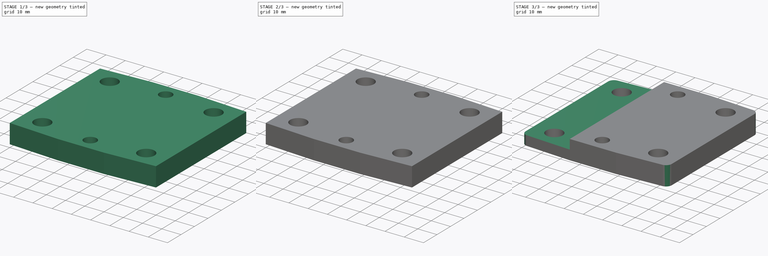
[diagram: build sequence overview — one tinted view per stage of 3, left to right]
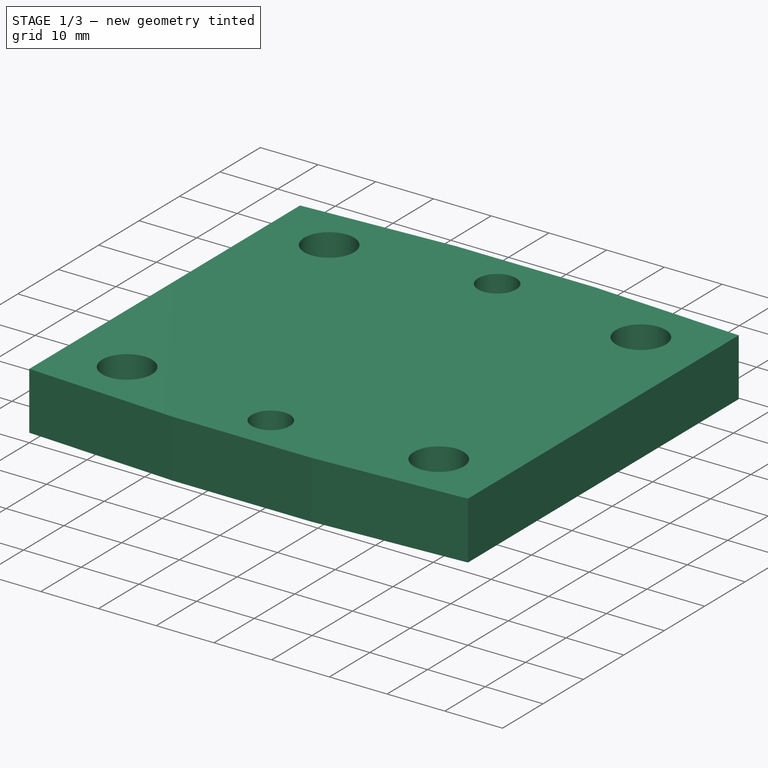
[diagram: stage 1 of 3 — iso view after this stage's code; geometry added in this stage tinted green]
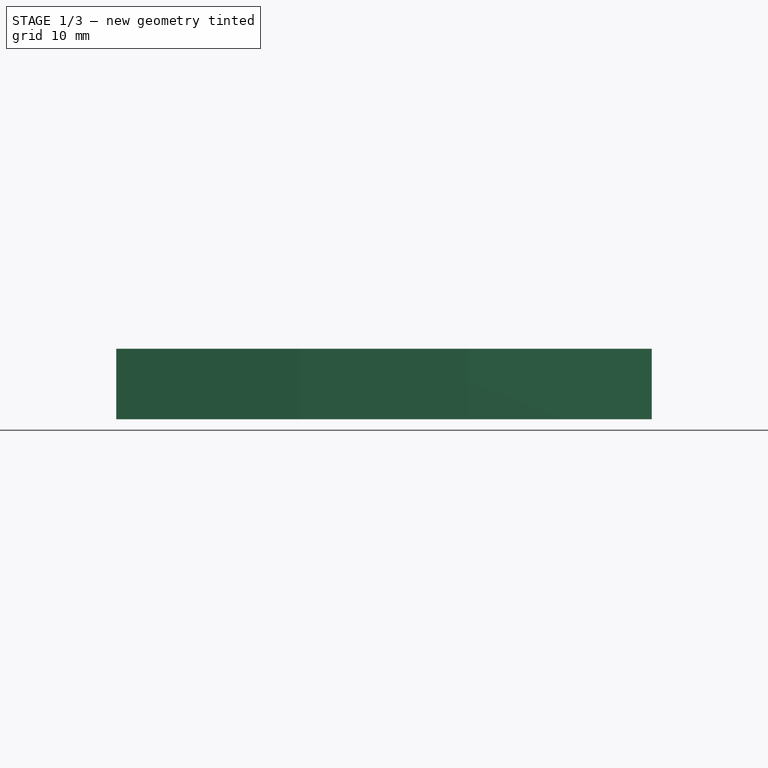
[diagram: stage 1 of 3 — front view after this stage's code; geometry added in this stage tinted green]
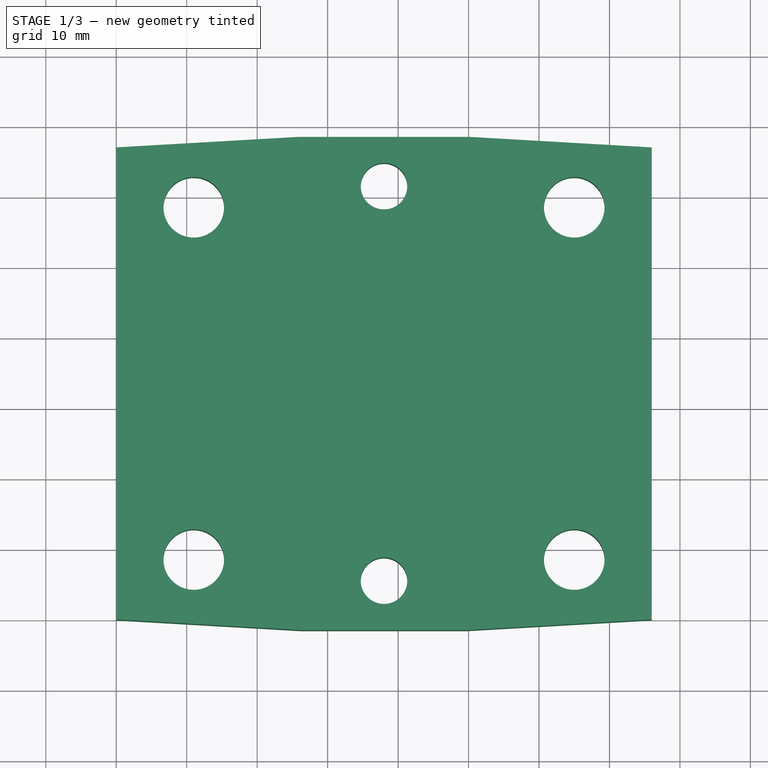
[diagram: stage 1 of 3 — top view after this stage's code; geometry added in this stage tinted green]
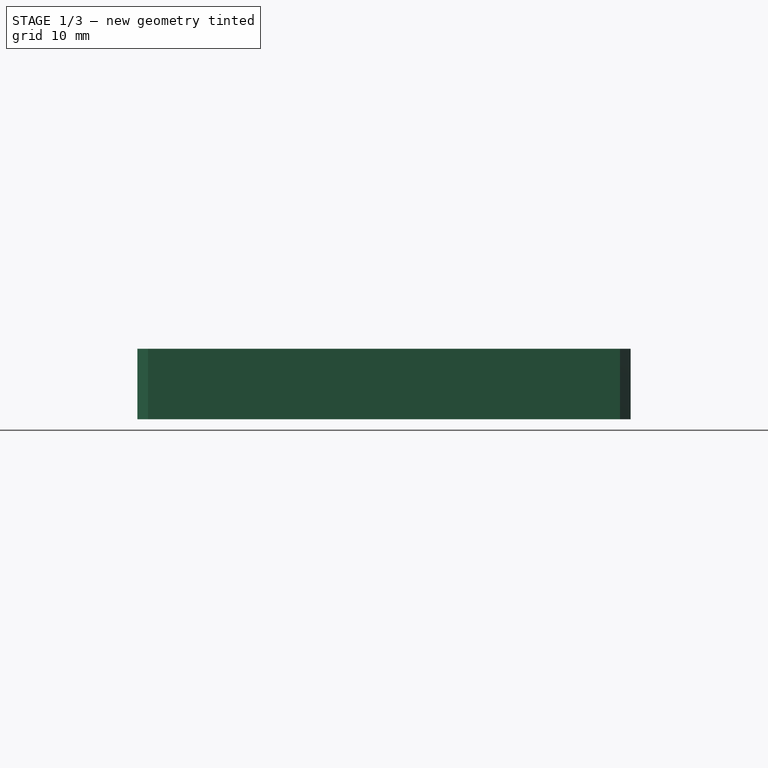
[diagram: stage 1 of 3 — right view after this stage's code; geometry added in this stage tinted green]
FCSTD DOCUMENT  (FreeCAD 1.0R39109 (Git))
Label: sway_SC25UU_to_SH25_with_plate
License: All rights reserved
LicenseURL: https://en.wikipedia.org/wiki/All_rights_reserved
objects: Sketcher::SketchObject×4, PartDesign::Pocket×3, PartDesign::Pad×1, PartDesign::Fillet×1, PartDesign::Body×1
note: 24 computed .brp shape members not serialized (recipe doc carries the construction recipe); baked Part::Feature solids carry a one-line shape summary decoded from their .brp

FEATURE [Sketcher::SketchObject] Sketch
  ArcFitTolerance = 1e-06
  AttachmentSupport = -> [XY_Plane]
  FullyConstrained = true
  MakeInternals = false
  MapMode = 5
  sketch-geometry (19):
    g0: LineSegment StartX=76 StartY=0 StartZ=0 EndX=76 EndY=67 EndZ=0
    g1: LineSegment StartX=0 StartY=67 StartZ=0 EndX=0 EndY=0 EndZ=0
    g2: LineSegment [constr] StartX=11 StartY=58.5 StartZ=0 EndX=11 EndY=8.5 EndZ=0
    g3: LineSegment [constr] StartX=11 StartY=8.5 StartZ=0 EndX=65 EndY=8.5 EndZ=0
    g4: LineSegment [constr] StartX=65 StartY=8.5 StartZ=0 EndX=65 EndY=58.5 EndZ=0
    g5: LineSegment [constr] StartX=65 StartY=58.5 StartZ=0 EndX=11 EndY=58.5 EndZ=0
    g6: Circle CenterX=11 CenterY=58.5 CenterZ=0 NormalX=0 NormalY=0 NormalZ=1 AngleXU=0 Radius=4.3
    g7: Circle CenterX=65 CenterY=58.5 CenterZ=0 NormalX=0 NormalY=0 NormalZ=1 AngleXU=0 Radius=4.3
    g8: Circle CenterX=65 CenterY=8.5 CenterZ=0 NormalX=0 NormalY=0 NormalZ=1 AngleXU=0 Radius=4.3
    g9: Circle CenterX=11 CenterY=8.5 CenterZ=0 NormalX=0 NormalY=0 NormalZ=1 AngleXU=0 Radius=4.3
    g10: LineSegment [constr] StartX=0 StartY=0 StartZ=0 EndX=11 EndY=8.5 EndZ=0
    g11: LineSegment [constr] StartX=65 StartY=58.5 StartZ=0 EndX=76 EndY=67 EndZ=0
    g12: LineSegment [constr] StartX=11 StartY=58.5 StartZ=0 EndX=0 EndY=67 EndZ=0
    g13: LineSegment StartX=0 StartY=67 StartZ=0 EndX=26 EndY=68.5 EndZ=0
    g14: LineSegment StartX=26 StartY=68.5 StartZ=0 EndX=50 EndY=68.5 EndZ=0
    g15: LineSegment StartX=50 StartY=68.5 StartZ=0 EndX=76 EndY=67 EndZ=0
    g16: LineSegment StartX=0 StartY=0 StartZ=0 EndX=26 EndY=-1.5 EndZ=0
    g17: LineSegment StartX=26 StartY=-1.5 StartZ=0 EndX=50 EndY=-1.5 EndZ=0
    g18: LineSegment StartX=50 StartY=-1.5 StartZ=0 EndX=76 EndY=0 EndZ=0
  constraints (49):
    c: Vertical(g0)
    c: Vertical(g1)
    c: Distance(g0,g1) = 76
    c: Distance(g1,g1) = 67
    c: Coincident(g2,g3)
    c: Coincident(g3,g4)
    c: Coincident(g4,g5)
    c: Coincident(g5,g2)
    c: Vertical(g2)
    c: Vertical(g4)
    c: Horizontal(g3)
    c: Horizontal(g5)
    c: Distance(g2,g4) = 54
    c: Distance(g3,g5) = 50
    c: Coincident(g6,g2)
    c: Coincident(g7,g4)
    c: Coincident(g8,g3)
    c: Coincident(g9,g2)
    c: Equal(g7,g8)
    c: Equal(g7,g9)
    c: Equal(g7,g6)
    c: Diameter(g7) = 8.6
    c: Coincident(g10,g2)
    c: Coincident(g11,g4)
    c: Coincident(g11,g0)
    c: Coincident(g12,g2)
    c: Equal(g12,g10)
    c: Equal(g12,g11)
    c: Coincident(g13,g1)
    c: Coincident(g14,g13)
    c: Horizontal(g14)
    c: Coincident(g15,g14)
    c: Coincident(g15,g0)
    c: Coincident(g16,g1)
    c: Coincident(g17,g16)
    c: Horizontal(g17)
    c: Coincident(g18,g17)
    c: Coincident(g18,g0)
    c: DistanceX(g17,g17) = 24
    c: Equal(g17,g14)
    c: Equal(g13,g15)
    c: Equal(g15,g18)
    c: Equal(g18,g16)
    c: Coincident(g1,g10)
    c: Coincident(g1,g-1)
    c: Coincident(g12,g1)
    c: PointOnObject(g0,g-1)
    c: Equal(g0,g1)
    c: DistanceY(g16,g13) = 70
FEATURE [PartDesign::Pad] Pad
  Direction = (0,0,1)
  Length = 10
  Length2 = 10
  Profile = -> Sketch
  ReferenceAxis = -> Sketch [N_Axis]
  Refine = true
  Suppressed = false
  Type = 0
FEATURE [Sketcher::SketchObject] Sketch001
  ArcFitTolerance = 1e-06
  AttachmentSupport = -> [Pad]
  FullyConstrained = true
  MakeInternals = false
  MapMode = 5
  Placement = pos=(0,0,10) rot=(0,0,1;0rad)
  sketch-geometry (2):
    g0: Circle CenterX=38 CenterY=61.5 CenterZ=0 NormalX=0 NormalY=0 NormalZ=1 AngleXU=0 Radius=3.3
    g1: Circle CenterX=38 CenterY=5.5 CenterZ=0 NormalX=0 NormalY=0 NormalZ=1 AngleXU=0 Radius=3.3
  constraints (6):
    c: DistanceY(g1,g0) = 56
    c: Equal(g1,g0)
    c: Diameter(g1) = 6.6
    c: DistanceY(g1) = 5.5
    c: DistanceX(g1) = 38
    c: DistanceX(g0,g1) = 0
FEATURE [PartDesign::Pocket] Pocket
  BaseFeature = -> Pad
  Direction = (0,0,-1)
  Length = 5
  Length2 = 5
  Profile = -> Sketch001
  ReferenceAxis = -> Sketch001 [N_Axis]
  Refine = true
  Suppressed = false
  Type = 1
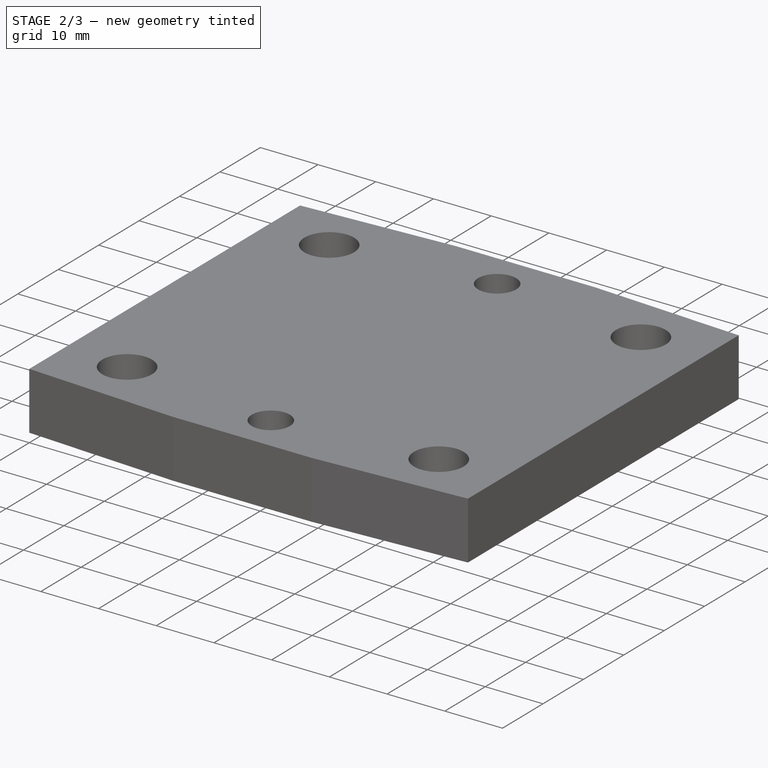
[diagram: stage 2 of 3 — iso view after this stage's code; geometry added in this stage tinted green]
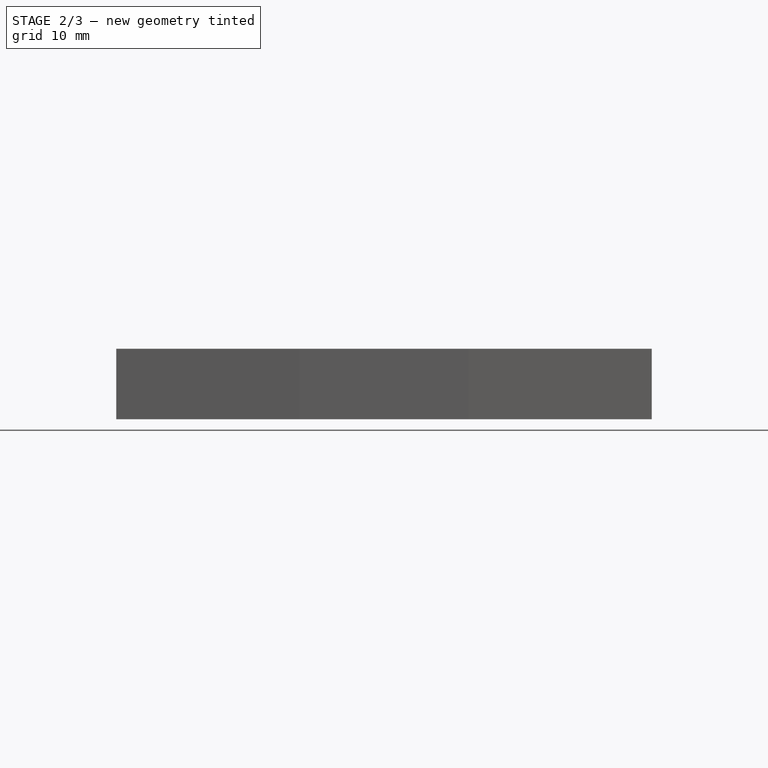
[diagram: stage 2 of 3 — front view after this stage's code; geometry added in this stage tinted green]
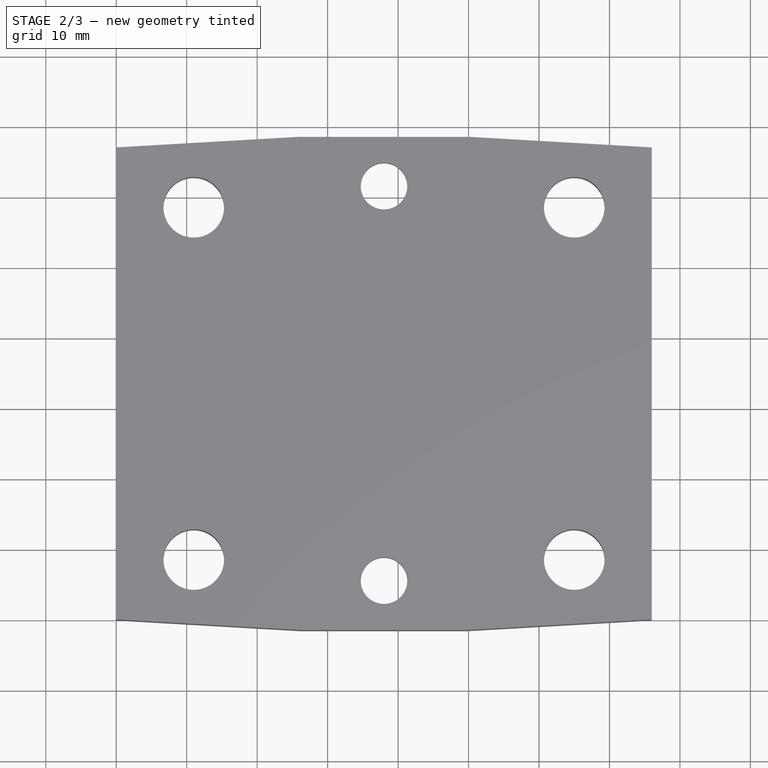
[diagram: stage 2 of 3 — top view after this stage's code; geometry added in this stage tinted green]
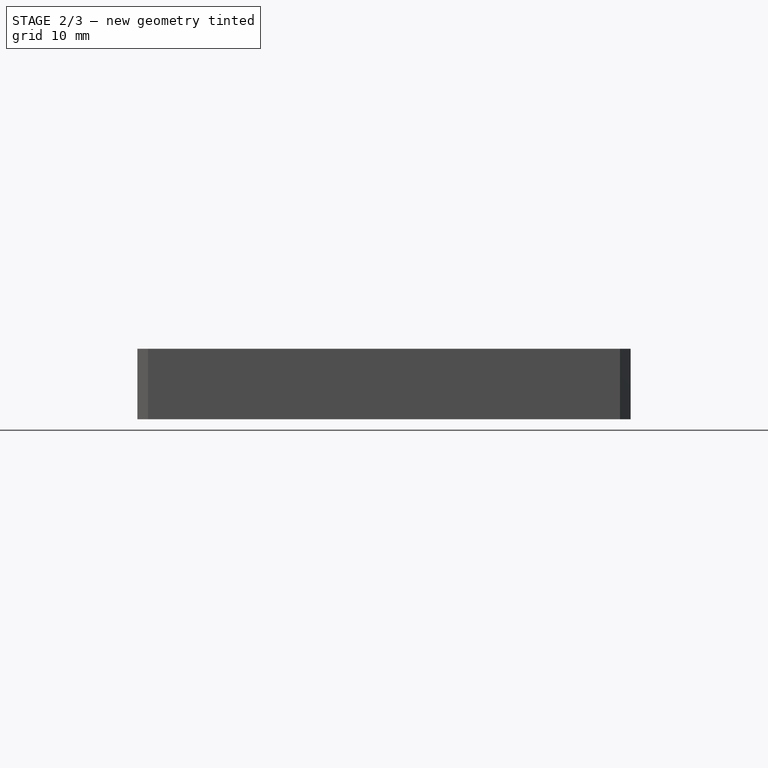
[diagram: stage 2 of 3 — right view after this stage's code; geometry added in this stage tinted green]
FEATURE [Sketcher::SketchObject] Sketch002
  ArcFitTolerance = 1e-06
  AttachmentSupport = -> [Pocket]
  FullyConstrained = true
  MakeInternals = false
  MapMode = 5
  Placement = pos=(0,0,0) rot=(1,0,0;3.14159rad)
  expr: Constraints[2] = Sketch001.Constraints[2]
  expr: Constraints[4] = Sketch001.Constraints[4]
  expr: Constraints[5] = Sketch001.Constraints[5]
  sketch-geometry (16):
    g0: Circle [constr] CenterX=38 CenterY=-61.5 CenterZ=0 NormalX=0 NormalY=0 NormalZ=1 AngleXU=0 Radius=3.3
    g1: Circle [constr] CenterX=38 CenterY=-5.5 CenterZ=0 NormalX=0 NormalY=0 NormalZ=1 AngleXU=0 Radius=3.3
    g2: LineSegment StartX=40.9734 StartY=-10.65 StartZ=0 EndX=43.9467 EndY=-5.5 EndZ=0
    g3: LineSegment StartX=43.9467 StartY=-5.5 StartZ=0 EndX=40.9734 EndY=-0.35 EndZ=0
    g4: LineSegment StartX=40.9734 StartY=-0.35 StartZ=0 EndX=35.0266 EndY=-0.35 EndZ=0
    g5: LineSegment StartX=35.0266 StartY=-0.35 StartZ=0 EndX=32.0533 EndY=-5.5 EndZ=0
    g6: LineSegment StartX=32.0533 StartY=-5.5 StartZ=0 EndX=35.0266 EndY=-10.65 EndZ=0
    g7: LineSegment StartX=35.0266 StartY=-10.65 StartZ=0 EndX=40.9734 EndY=-10.65 EndZ=0
    g8: Circle [constr] CenterX=38 CenterY=-5.5 CenterZ=0 NormalX=0 NormalY=0 NormalZ=1 AngleXU=0 Radius=5.94671
    g9: LineSegment StartX=43.9467 StartY=-61.5 StartZ=0 EndX=40.9734 EndY=-56.35 EndZ=0
    g10: LineSegment StartX=40.9734 StartY=-56.35 StartZ=0 EndX=35.0266 EndY=-56.35 EndZ=0
    g11: LineSegment StartX=35.0266 StartY=-56.35 StartZ=0 EndX=32.0533 EndY=-61.5 EndZ=0
    g12: LineSegment StartX=32.0533 StartY=-61.5 StartZ=0 EndX=35.0266 EndY=-66.65 EndZ=0
    g13: LineSegment StartX=35.0266 StartY=-66.65 StartZ=0 EndX=40.9734 EndY=-66.65 EndZ=0
    g14: LineSegment StartX=40.9734 StartY=-66.65 StartZ=0 EndX=43.9467 EndY=-61.5 EndZ=0
    g15: Circle [constr] CenterX=38 CenterY=-61.5 CenterZ=0 NormalX=0 NormalY=0 NormalZ=1 AngleXU=0 Radius=5.94671
  constraints (38):
    c: DistanceY(g1,g0) = -56
    c: Equal(g1,g0)
    c: Diameter(g1) = 6.6
    c: DistanceY(g1) = -5.5
    c: DistanceX(g1) = 38
    c: DistanceX(g0,g1) = 0
    c: Coincident(g2,g3)
    c: Coincident(g3,g4)
    c: Coincident(g4,g5)
    c: Coincident(g5,g6)
    c: Coincident(g6,g7)
    c: Coincident(g7,g2)
    c: Equal(g2, g3-g7) x5
    c: PointOnObject(g2,g8)
    c: PointOnObject(g3,g8)
    c: PointOnObject(g4,g8)
    c: PointOnObject(g5,g8)
    c: PointOnObject(g6,g8)
    c: PointOnObject(g7,g8)
    c: Coincident(g8,g1)
    c: Coincident(g9,g10)
    c: Coincident(g10,g11)
    c: Coincident(g11,g12)
    c: Coincident(g12,g13)
    c: Coincident(g13,g14)
    c: Coincident(g14,g9)
    c: Equal(g9, g10-g14) x5
    c: PointOnObject(g9,g15)
    c: PointOnObject(g10,g15)
    c: PointOnObject(g11,g15)
    c: PointOnObject(g12,g15)
    c: PointOnObject(g13,g15)
    c: PointOnObject(g14,g15)
    c: Coincident(g15,g0)
    c: Distance(g10,g9) = 10.3
    c: Horizontal(g10)
    c: Equal(g10,g4)
    c: Horizontal(g4)
FEATURE [PartDesign::Pocket] Pocket001
  BaseFeature = -> Pocket
  Direction = (0,0,1)
  Length = 5.2
  Length2 = 5
  Profile = -> Sketch002
  ReferenceAxis = -> Sketch002 [N_Axis]
  Refine = true
  Suppressed = false
  Type = 0
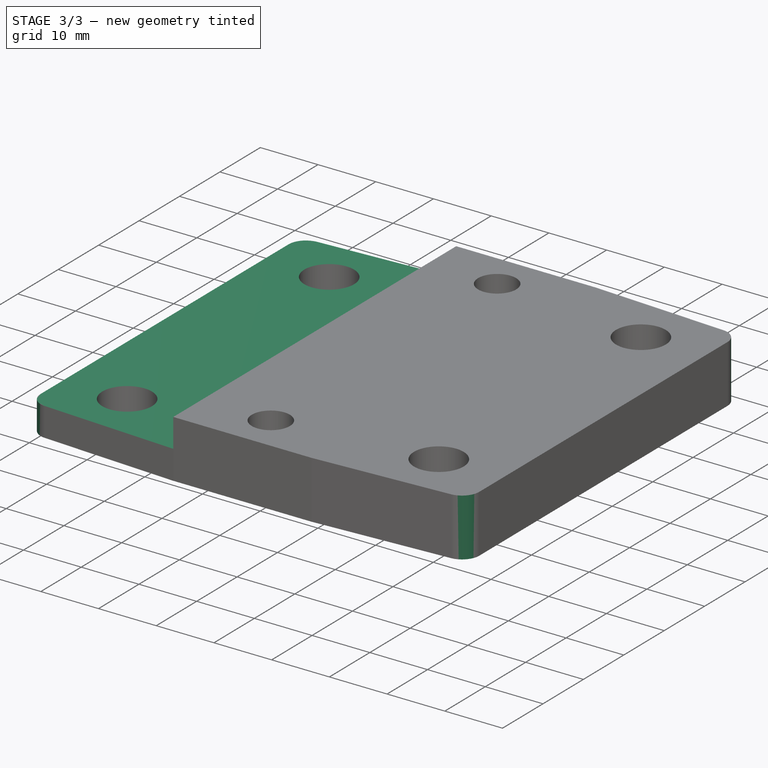
[diagram: stage 3 of 3 — iso view after this stage's code; geometry added in this stage tinted green]
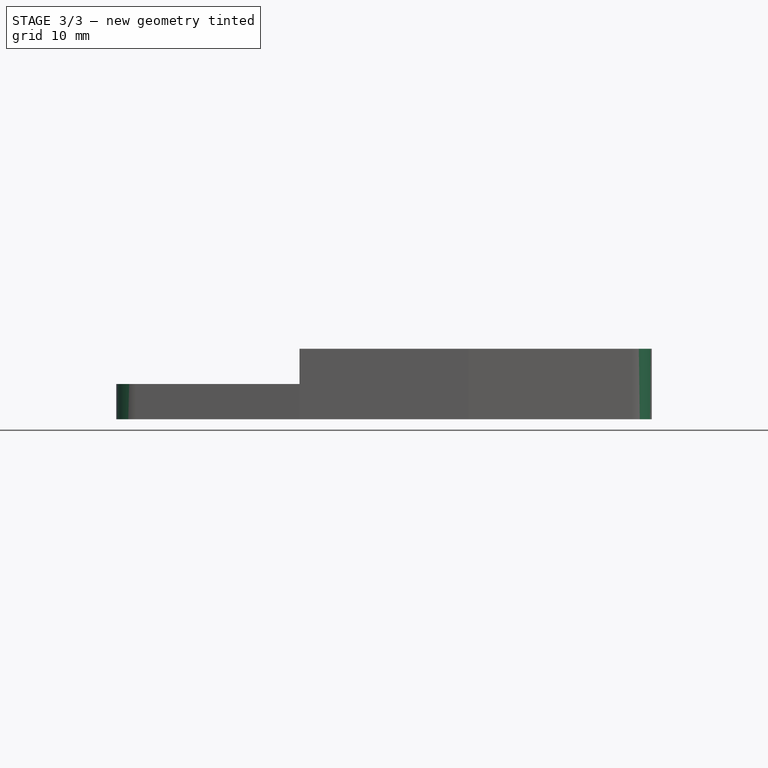
[diagram: stage 3 of 3 — front view after this stage's code; geometry added in this stage tinted green]
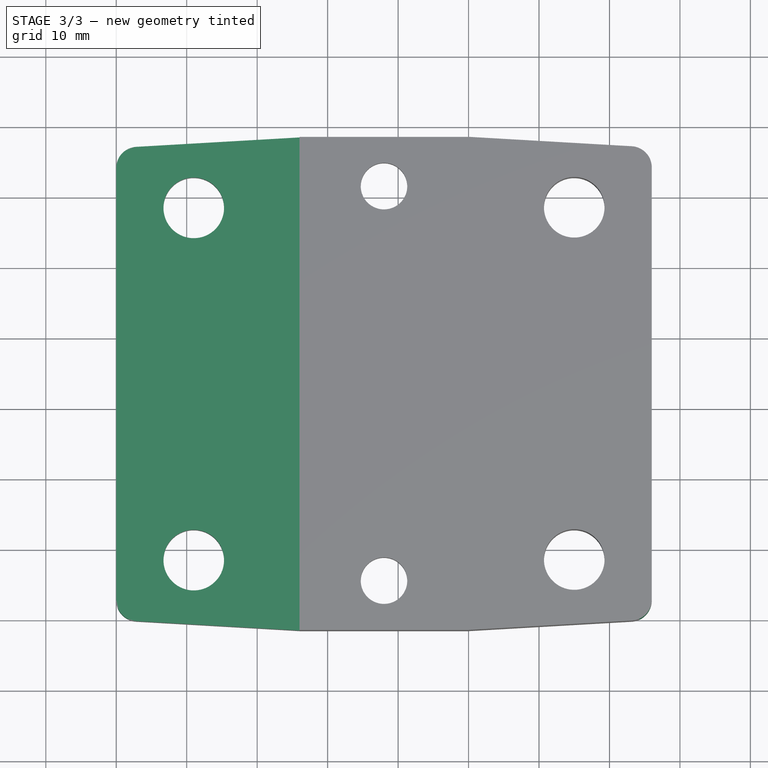
[diagram: stage 3 of 3 — top view after this stage's code; geometry added in this stage tinted green]
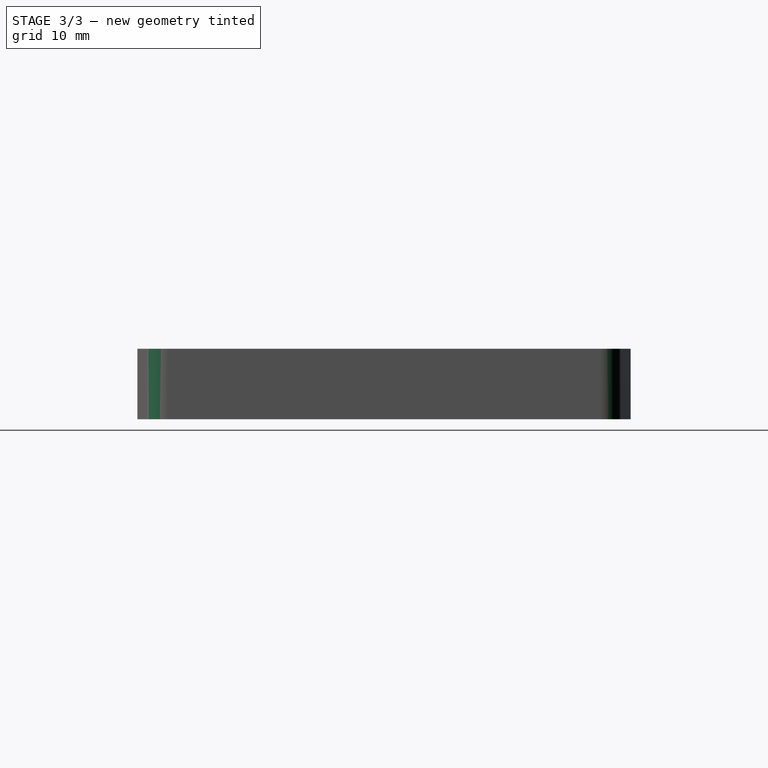
[diagram: stage 3 of 3 — right view after this stage's code; geometry added in this stage tinted green]
FEATURE [PartDesign::Fillet] Fillet
  Base = -> Pocket001 [Edge1,Edge2,Edge46,Edge45]
  BaseFeature = -> Pocket001
  Radius = 3
  Refine = true
  SupportTransform = false
  Suppressed = false
  UseAllEdges = false
FEATURE [Sketcher::SketchObject] Sketch003
  ArcFitTolerance = 1e-06
  AttachmentSupport = -> [Fillet]
  FullyConstrained = true
  MakeInternals = false
  MapMode = 5
  Placement = pos=(0,0,10) rot=(0,0,1;0rad)
  sketch-geometry (4):
    g0: LineSegment StartX=0 StartY=-1.5 StartZ=0 EndX=26 EndY=-1.5 EndZ=0
    g1: LineSegment StartX=26 StartY=-1.5 StartZ=0 EndX=26 EndY=68.5 EndZ=0
    g2: LineSegment StartX=26 StartY=68.5 StartZ=0 EndX=0 EndY=68.5 EndZ=0
    g3: LineSegment StartX=0 StartY=68.5 StartZ=0 EndX=0 EndY=-1.5 EndZ=0
  constraints (12):
    c: Coincident(g0,g1)
    c: Coincident(g1,g2)
    c: Coincident(g2,g3)
    c: Coincident(g3,g0)
    c: Horizontal(g0)
    c: Horizontal(g2)
    c: Vertical(g1)
    c: Vertical(g3)
    c: Distance(g1,g3) = 26
    c: PointOnObject(g0,g-2)
    c: DistanceY(g0,g-1) = 1.5
    c: DistanceY(g3,g3) = 70
FEATURE [PartDesign::Pocket] Pocket002
  BaseFeature = -> Fillet
  Direction = (0,0,-1)
  Length = 5
  Length2 = 5
  Profile = -> Sketch003
  ReferenceAxis = -> Sketch003 [N_Axis]
  Refine = true
  Suppressed = false
  Type = 0
FEATURE [PartDesign::Body] Body  label="sway_SC25UU_to_SH25_with_plate"
  AllowCompound = false
  Group = -> [Sketch,Pad,Sketch001,Pocket,Sketch002,Pocket001,Fillet,Sketch003,Pocket002]
  Origin = -> Origin
  Tip = -> Pocket002
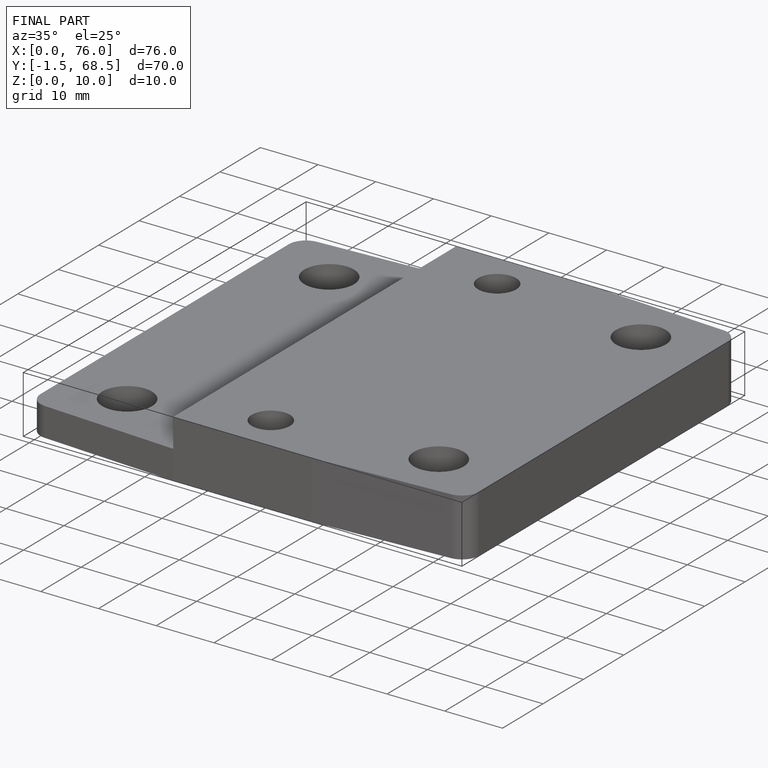
[diagram: finished part — iso view with bounding-box wireframe]
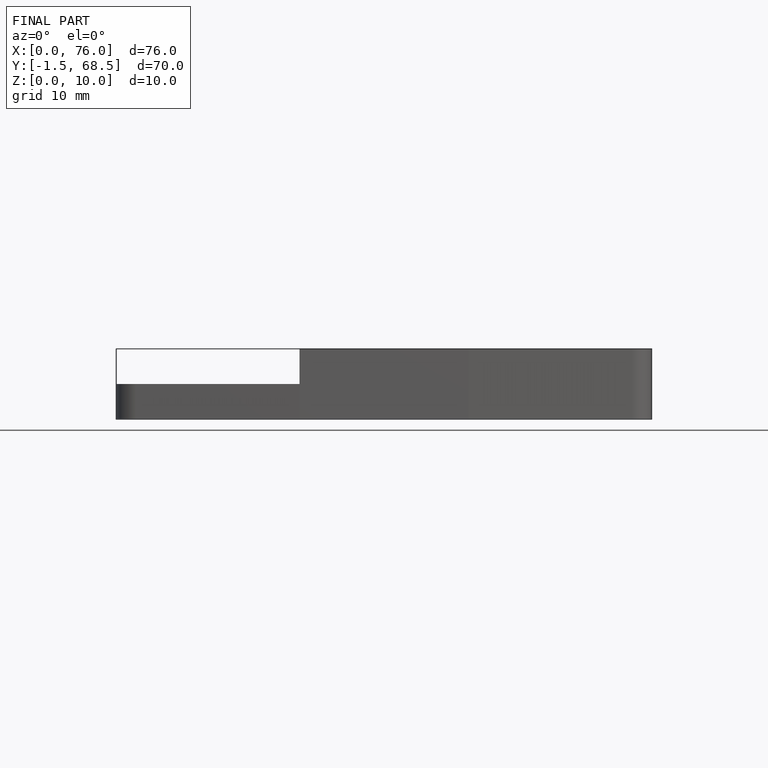
[diagram: finished part — front view with bounding-box wireframe]
